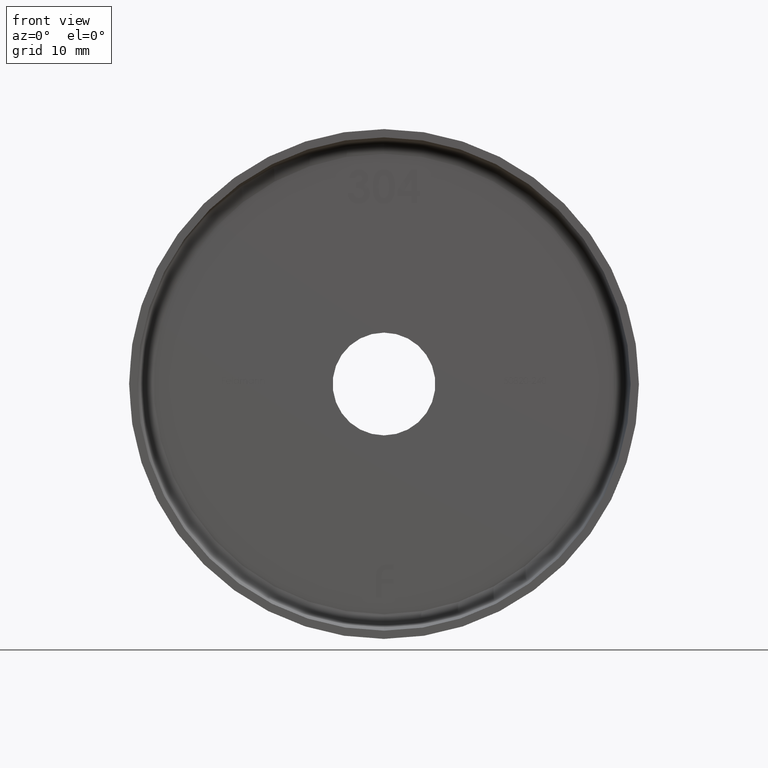
[diagram: clean part render]
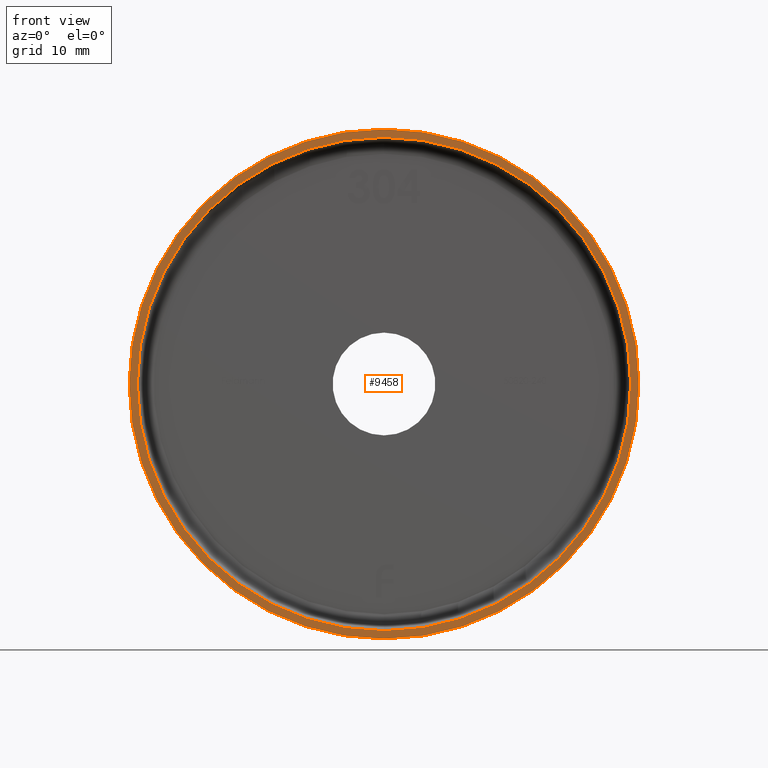
[diagram: same view with one face highlighted and labeled with its STEP entity id]
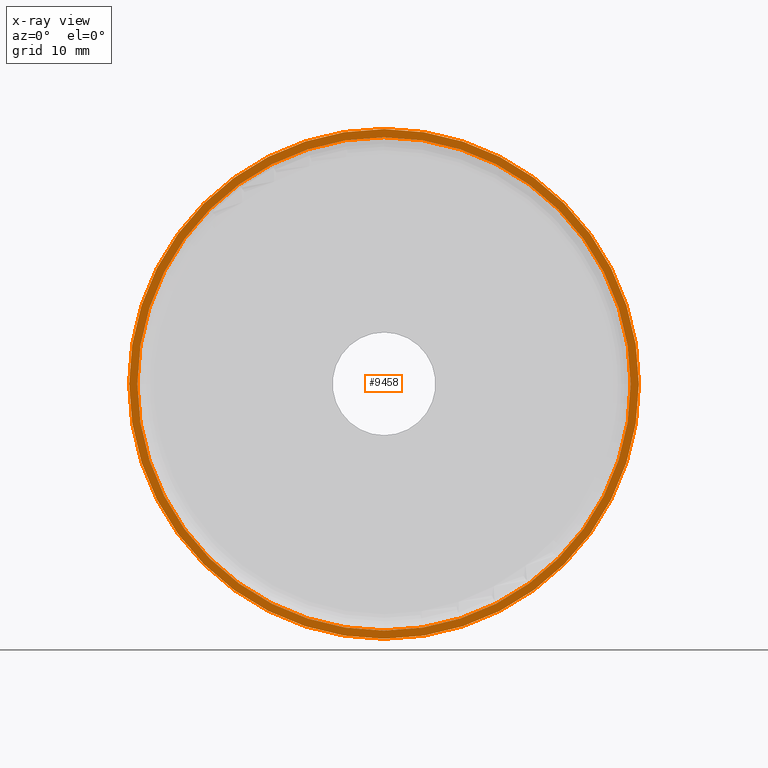
[diagram: x-ray of the same camera — body ghosted, the highlighted face saturated]
A machine part, front view. The second image highlights one B-rep face of the part: STEP entity #9458.
The next image is the same camera in x-ray: the body ghosted, the highlighted face saturated — about 0% of this face is hidden behind the body in this view.
In plain terms, the highlighted planar face has unit normal (0, -1, -0).
Its self-contained STEP definition (entity closure, byte-faithful):
#300 = CIRCLE ( 'NONE', #9098, 31.00000000000000000 ) ;
#321 = CIRCLE ( 'NONE', #6458, 31.00000000000000000 ) ;
#604 = EDGE_CURVE ( 'NONE', #16326, #5320, #9536, .T. ) ;
#1693 = DIRECTION ( 'NONE',  ( -0.000000000000000000, -1.000000000000000000, -0.000000000000000000 ) ) ;
#1972 = CIRCLE ( 'NONE', #17087, 30.00000000000000000 ) ;
#2507 = ORIENTED_EDGE ( 'NONE', *, *, #604, .F. ) ;
#2665 = EDGE_CURVE ( 'NONE', #6222, #10810, #300, .T. ) ;
#3232 = EDGE_CURVE ( 'NONE', #5320, #16326, #1972, .T. ) ;
#4173 = ORIENTED_EDGE ( 'NONE', *, *, #2665, .T. ) ;
#4226 = CARTESIAN_POINT ( 'NONE',  ( 0.000000000000000000, 0.000000000000000000, 0.000000000000000000 ) ) ;
#4602 = CARTESIAN_POINT ( 'NONE',  ( 3.796405077356795115E-15, 0.000000000000000000, 31.00000000000000000 ) ) ;
#4612 = DIRECTION ( 'NONE',  ( 0.000000000000000000, 0.000000000000000000, -1.000000000000000000 ) ) ;
#4670 = CARTESIAN_POINT ( 'NONE',  ( 30.00000000000000000, -6.123233995736766036E-17, 0.000000000000000000 ) ) ;
#5320 = VERTEX_POINT ( 'NONE', #15284 ) ;
#6222 = VERTEX_POINT ( 'NONE', #11589 ) ;
#6458 = AXIS2_PLACEMENT_3D ( 'NONE', #4226, #6984, #8056 ) ;
#6984 = DIRECTION ( 'NONE',  ( -0.000000000000000000, -1.000000000000000000, -0.000000000000000000 ) ) ;
#7065 = ORIENTED_EDGE ( 'NONE', *, *, #3232, .F. ) ;
#7455 = CARTESIAN_POINT ( 'NONE',  ( 0.000000000000000000, -1.224646799147353207E-16, 0.000000000000000000 ) ) ;
#8030 = CARTESIAN_POINT ( 'NONE',  ( 0.000000000000000000, 0.000000000000000000, 0.000000000000000000 ) ) ;
#8056 = DIRECTION ( 'NONE',  ( 0.000000000000000000, 0.000000000000000000, -1.000000000000000000 ) ) ;
#8280 = FACE_OUTER_BOUND ( 'NONE', #15446, .T. ) ;
#8723 = FACE_BOUND ( 'NONE', #9203, .T. ) ;
#8813 = DIRECTION ( 'NONE',  ( 0.000000000000000000, -1.000000000000000000, -0.000000000000000000 ) ) ;
#8817 = DIRECTION ( 'NONE',  ( -0.000000000000000000, -1.000000000000000000, -0.000000000000000000 ) ) ;
#8889 = CARTESIAN_POINT ( 'NONE',  ( 0.000000000000000000, -1.224646799147353207E-16, -30.00000000000000000 ) ) ;
#9098 = AXIS2_PLACEMENT_3D ( 'NONE', #8030, #9427, #9324 ) ;
#9203 = EDGE_LOOP ( 'NONE', ( #2507, #7065 ) ) ;
#9324 = DIRECTION ( 'NONE',  ( 0.000000000000000000, 0.000000000000000000, -1.000000000000000000 ) ) ;
#9427 = DIRECTION ( 'NONE',  ( -0.000000000000000000, -1.000000000000000000, -0.000000000000000000 ) ) ;
#9429 = AXIS2_PLACEMENT_3D ( 'NONE', #4670, #8813, #4612 ) ;
#9458 = ADVANCED_FACE ( 'NONE', ( #8280, #8723 ), #12579, .T. ) ;
#9536 = CIRCLE ( 'NONE', #11858, 30.00000000000000000 ) ;
#10232 = ORIENTED_EDGE ( 'NONE', *, *, #13962, .T. ) ;
#10810 = VERTEX_POINT ( 'NONE', #4602 ) ;
#11106 = CARTESIAN_POINT ( 'NONE',  ( 0.000000000000000000, -1.224646799147353207E-16, 0.000000000000000000 ) ) ;
#11589 = CARTESIAN_POINT ( 'NONE',  ( 0.000000000000000000, 0.000000000000000000, -31.00000000000000000 ) ) ;
#11858 = AXIS2_PLACEMENT_3D ( 'NONE', #7455, #8817, #15361 ) ;
#12579 = PLANE ( 'NONE',  #9429 ) ;
#13962 = EDGE_CURVE ( 'NONE', #10810, #6222, #321, .T. ) ;
#15284 = CARTESIAN_POINT ( 'NONE',  ( 3.673940397442059178E-15, -1.224646799147353207E-16, 30.00000000000000000 ) ) ;
#15361 = DIRECTION ( 'NONE',  ( 0.000000000000000000, 0.000000000000000000, -1.000000000000000000 ) ) ;
#15446 = EDGE_LOOP ( 'NONE', ( #4173, #10232 ) ) ;
#16326 = VERTEX_POINT ( 'NONE', #8889 ) ;
#16428 = DIRECTION ( 'NONE',  ( 0.000000000000000000, 0.000000000000000000, -1.000000000000000000 ) ) ;
#17087 = AXIS2_PLACEMENT_3D ( 'NONE', #11106, #1693, #16428 ) ;